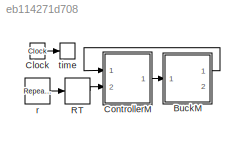
MODEL slx_eb114271d708
KIND model
CONFIG AbsTol = auto
CONFIG FixedStep = t_step
CONFIG MaxStep = auto
CONFIG MinStep = auto
CONFIG RelTol = 1e-3
CONFIG SampleTimeConstraint = Unconstrained
CONFIG Solver = ode4
CONFIG SolverMode = Auto
CONFIG SolverName = ode4
CONFIG StartTime = 0.0
CONFIG StopTime = tf
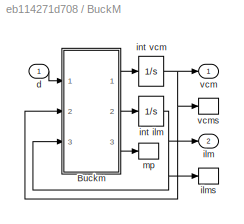
BLOCK [SubSystem] BuckM
  Ports = [1, 2]
  RequestExecContextInheritance = off
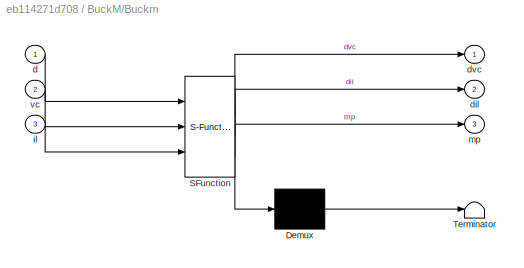
BLOCK [SubSystem] BuckM/Buckm
  ErrorFcn = Stateflow.Translate.translate
  PermitHierarchicalResolution = ExplicitOnly
  Ports = [3, 3]
  RequestExecContextInheritance = off
  SFBlockType = MATLAB Function
  TreatAsAtomicUnit = on
BLOCK [Demux] BuckM/Buckm/ Demux 
  Outputs = 1
  Ports = [1, 1]
BLOCK [S-Function] BuckM/Buckm/ SFunction 
  EnableBusSupport = on
  FunctionName = sf_sfun
  Parameters = Cp,DB,L,R,Ts,Vi
  PortCounts = [3 4]
  Ports = [3, 4]
  Tag = Stateflow S-Function Bulk_SM_SM_SE_Sim 3
BLOCK [Terminator] BuckM/Buckm/ Terminator 
BLOCK [Inport] BuckM/Buckm/d
  IconDisplay = Port number
BLOCK [Outport] BuckM/Buckm/dil
  IconDisplay = Port number
  Port = 2
BLOCK [Outport] BuckM/Buckm/dvc
  IconDisplay = Port number
BLOCK [Inport] BuckM/Buckm/il
  IconDisplay = Port number
  Port = 3
BLOCK [Outport] BuckM/Buckm/mp
  IconDisplay = Port number
  Port = 3
BLOCK [Inport] BuckM/Buckm/vc
  IconDisplay = Port number
  Port = 2
BLOCK [Inport] BuckM/d
  IconDisplay = Port number
BLOCK [Outport] BuckM/ilm
  IconDisplay = Port number
  Port = 2
BLOCK [ToWorkspace] BuckM/ilms
  FixptAsFi = on
  MaxDataPoints = inf
  Ports = [1]
  SampleTime = -1
  Save2DSignal = 3-D array (concatenate along third dimension)
  VariableName = ilm
BLOCK [Integrator] BuckM/int ilm
  LimitOutput = on
  LowerSaturationLimit = 0
  Ports = [1, 1]
BLOCK [Integrator] BuckM/int vcm
  LimitOutput = on
  LowerSaturationLimit = 0
  Ports = [1, 1]
BLOCK [ToWorkspace] BuckM/mp
  FixptAsFi = on
  MaxDataPoints = inf
  Ports = [1]
  SampleTime = -1
  Save2DSignal = 3-D array (concatenate along third dimension)
  VariableName = mp
BLOCK [Outport] BuckM/vcm
  IconDisplay = Port number
BLOCK [ToWorkspace] BuckM/vcms
  FixptAsFi = on
  MaxDataPoints = inf
  Ports = [1]
  SampleTime = -1
  Save2DSignal = 3-D array (concatenate along third dimension)
  VariableName = vcm
BLOCK [Clock] Clock
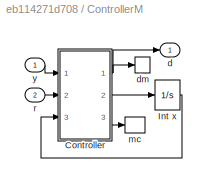
BLOCK [SubSystem] ControllerM
  Ports = [2, 1]
  RequestExecContextInheritance = off
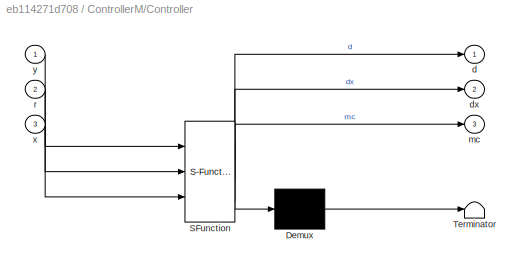
BLOCK [SubSystem] ControllerM/Controller
  ErrorFcn = Stateflow.Translate.translate
  PermitHierarchicalResolution = ExplicitOnly
  Ports = [3, 3]
  RequestExecContextInheritance = off
  SFBlockType = MATLAB Function
  TreatAsAtomicUnit = on
BLOCK [Demux] ControllerM/Controller/ Demux 
  Outputs = 1
  Ports = [1, 1]
BLOCK [S-Function] ControllerM/Controller/ SFunction 
  EnableBusSupport = on
  FunctionName = sf_sfun
  Parameters = A,B,C,Cp,DBm,Ks,L,L_fpe,R,Ts,Vi,lambda,phi
  PortCounts = [3 4]
  Ports = [3, 4]
  Tag = Stateflow S-Function Bulk_SM_SM_SE_Sim 4
BLOCK [Terminator] ControllerM/Controller/ Terminator 
BLOCK [Outport] ControllerM/Controller/d
  IconDisplay = Port number
BLOCK [Outport] ControllerM/Controller/dx
  IconDisplay = Port number
  Port = 2
BLOCK [Outport] ControllerM/Controller/mc
  IconDisplay = Port number
  Port = 3
BLOCK [Inport] ControllerM/Controller/r
  IconDisplay = Port number
  Port = 2
BLOCK [Inport] ControllerM/Controller/x
  IconDisplay = Port number
  Port = 3
BLOCK [Inport] ControllerM/Controller/y
  IconDisplay = Port number
BLOCK [Integrator] ControllerM/Int x
  InitialCondition = [0; 0]
  LimitOutput = on
  LowerSaturationLimit = [0; 0]
  Ports = [1, 1]
  UpperSaturationLimit = [2*Vi; 2*Vi/R]
BLOCK [Outport] ControllerM/d
  IconDisplay = Port number
BLOCK [ToWorkspace] ControllerM/dm
  FixptAsFi = on
  MaxDataPoints = inf
  Ports = [1]
  SampleTime = -1
  Save2DSignal = 3-D array (concatenate along third dimension)
  VariableName = d
BLOCK [ToWorkspace] ControllerM/mc
  FixptAsFi = on
  MaxDataPoints = inf
  Ports = [1]
  SampleTime = -1
  Save2DSignal = 3-D array (concatenate along third dimension)
  VariableName = mc
BLOCK [Inport] ControllerM/r
  IconDisplay = Port number
  Port = 2
BLOCK [Inport] ControllerM/y
  IconDisplay = Port number
BLOCK [RateTransition] RT
  Deterministic = off
  Integrity = off
  X0 = 2
BLOCK [Reference] r  REF=simulink/Sources/Repeating
Sequence
Stair
  ConRadixGroup = Best Precision: Vector-wise
  LockScale = off
  OutDataType = fixdt(0,8)
  OutDataTypeStr = double
  OutMax = []
  OutMin = []
  OutScaling = 2^-12
  OutValues = [2, 26, 14].'
  OutputDataTypeScalingMode = double
  Ports = [0, 1]
  SourceBlock = simulink/Sources/Repeating\nSequence\nStair
  SourceType = Repeating Sequence Stair
  tsamp = Tr
BLOCK [ToWorkspace] time
  FixptAsFi = on
  MaxDataPoints = inf
  Ports = [1]
  SampleTime = -1
  Save2DSignal = 3-D array (concatenate along third dimension)
  VariableName = t
LINE BuckM/Buckm:1 -> BuckM/int vcm:1
LINE BuckM/Buckm:2 -> BuckM/int ilm:1
LINE BuckM/Buckm:3 -> BuckM/mp:1
LINE BuckM/d:1 -> BuckM/Buckm:1
NET BuckM/int ilm:1 -> BuckM/Buckm:3, BuckM/ilm:1, BuckM/ilms:1
NET BuckM/int vcm:1 -> BuckM/Buckm:2, BuckM/vcm:1, BuckM/vcms:1
LINE BuckM:1 -> ControllerM:1
LINE Clock:1 -> time:1
NET ControllerM/Controller:1 -> ControllerM/d:1, ControllerM/dm:1
LINE ControllerM/Controller:2 -> ControllerM/Int x:1
LINE ControllerM/Controller:3 -> ControllerM/mc:1
LINE ControllerM/Int x:1 -> ControllerM/Controller:3
LINE ControllerM/r:1 -> ControllerM/Controller:2
LINE ControllerM/y:1 -> ControllerM/Controller:1
LINE ControllerM:1 -> BuckM:1
LINE RT:1 -> ControllerM:2
LINE r:1 -> RT:1
note: NET lines group one-source signal fan-out (src -> all destinations, sorted); 1:1 wires keep LINE
CHART BuckM/Buckm states=1 transitions=1
  STATE_LABEL 'eML_blk_kernel()'
  STATE_LABEL 'SCRIPT:\nfunction [dvc, dil, mp] = fcn(d, vc, il, Vi, R, L, Cp, Ts, DB)\nDBm = DB * Ts / (2*L);\nilb = DBm * (Vi - vc);\nif il < ilb % Nonlinear\n    dvc = il/Cp - vc/(R*Cp);\n    dil = Vi*d/L - 2*il*vc/(d*Ts*(Vi-vc));\n    mp = 0;\nelse % Linear\n    dvc = il/Cp - vc/(R*Cp);\n    dil = Vi*d/L - vc/L;\n    mp = 1;\nend'
CHART ControllerM/Controller states=1 transitions=1
  STATE_LABEL 'eML_blk_kernel()'
  STATE_LABEL 'SCRIPT:\nfunction [d, dx, mc] = fcn(y, r, x, R, Cp, L, Vi, Ts, DBm, lambda, phi, Ks, A, B, C, L_fpe)\nvcm = x(1);\nilm = x(2);\nilb = DBm * (Vi - vcm); % Conduction Mode Boundary\ndvcm = (ilm - vcm/R) / Cp;\n% Sliding Surface\ns = dvcm + lambda * (vcm - r);\n% Slinding-Mode Controller\nsat_s = min(1, max(-1, s/phi));\nv = - lambda * dvcm - Ks * sat_s;\nif ilm < ilb %%%   NONLINEAR   %%%\n    % Controller - In...<+572ch>'
